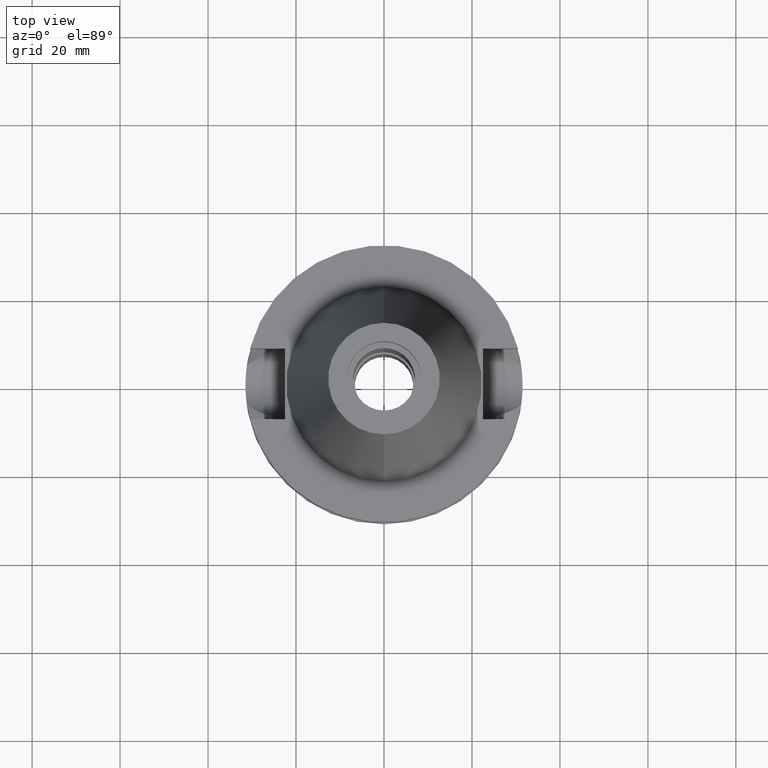
[diagram: clean part render]
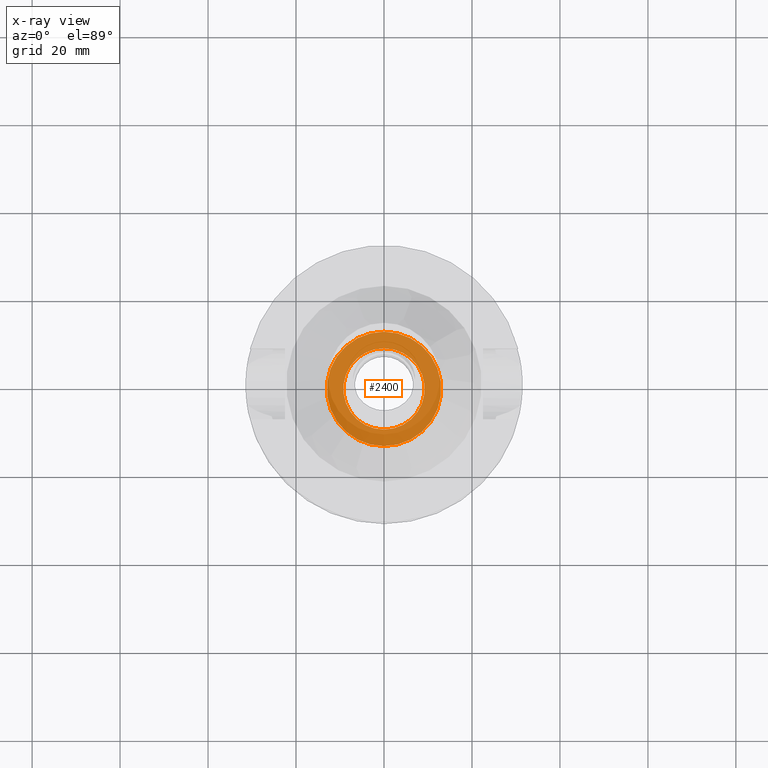
[diagram: x-ray — body ghosted, one internal face saturated and labeled with its STEP entity id]
A machine part, top view, then the same camera in x-ray: the body is ghosted and one INTERNAL B-rep face — a face not visible from any outside direction — is saturated and labeled: STEP entity #2400.
In plain terms, the highlighted planar face has unit normal (0, 0, -1).
Its self-contained STEP definition (entity closure, byte-faithful):
#136 = FACE_BOUND ( 'NONE', #622, .T. ) ;
#173 = CARTESIAN_POINT ( 'NONE',  ( 0.0000000000000000000, 0.0000000000000000000, -11.00000000000000000 ) ) ;
#214 = CARTESIAN_POINT ( 'NONE',  ( 0.0000000000000000000, 13.00000000000000000, -11.00000000000000000 ) ) ;
#254 = CARTESIAN_POINT ( 'NONE',  ( 0.0000000000000000000, 9.250000000000000000, -11.00000000000000000 ) ) ;
#380 = CARTESIAN_POINT ( 'NONE',  ( 0.0000000000000000000, 0.0000000000000000000, -11.00000000000000000 ) ) ;
#558 = DIRECTION ( 'NONE',  ( 0.0000000000000000000, -1.000000000000000000, 0.0000000000000000000 ) ) ;
#622 = EDGE_LOOP ( 'NONE', ( #3190, #2200 ) ) ;
#681 = DIRECTION ( 'NONE',  ( 0.0000000000000000000, 1.000000000000000000, 0.0000000000000000000 ) ) ;
#1113 = DIRECTION ( 'NONE',  ( 0.0000000000000000000, 0.0000000000000000000, 1.000000000000000000 ) ) ;
#1119 = AXIS2_PLACEMENT_3D ( 'NONE', #380, #2835, #2585 ) ;
#1208 = EDGE_LOOP ( 'NONE', ( #1868, #1781 ) ) ;
#1270 = PLANE ( 'NONE',  #1119 ) ;
#1335 = EDGE_CURVE ( 'NONE', #1434, #2907, #2012, .T. ) ;
#1434 = VERTEX_POINT ( 'NONE', #214 ) ;
#1462 = AXIS2_PLACEMENT_3D ( 'NONE', #2646, #3262, #558 ) ;
#1526 = EDGE_CURVE ( 'NONE', #3296, #2073, #3484, .T. ) ;
#1644 = DIRECTION ( 'NONE',  ( 0.0000000000000000000, 0.0000000000000000000, 1.000000000000000000 ) ) ;
#1781 = ORIENTED_EDGE ( 'NONE', *, *, #3384, .F. ) ;
#1868 = ORIENTED_EDGE ( 'NONE', *, *, #1335, .F. ) ;
#1956 = AXIS2_PLACEMENT_3D ( 'NONE', #2095, #1644, #3459 ) ;
#2012 = CIRCLE ( 'NONE', #2729, 13.00000000000000000 ) ;
#2073 = VERTEX_POINT ( 'NONE', #254 ) ;
#2095 = CARTESIAN_POINT ( 'NONE',  ( 0.0000000000000000000, 0.0000000000000000000, -11.00000000000000000 ) ) ;
#2145 = CARTESIAN_POINT ( 'NONE',  ( 0.0000000000000000000, -13.00000000000000000, -11.00000000000000000 ) ) ;
#2166 = CARTESIAN_POINT ( 'NONE',  ( 0.0000000000000000000, 0.0000000000000000000, -11.00000000000000000 ) ) ;
#2200 = ORIENTED_EDGE ( 'NONE', *, *, #1526, .F. ) ;
#2248 = CIRCLE ( 'NONE', #2345, 9.250000000000000000 ) ;
#2325 = CARTESIAN_POINT ( 'NONE',  ( 0.0000000000000000000, -9.250000000000000000, -11.00000000000000000 ) ) ;
#2345 = AXIS2_PLACEMENT_3D ( 'NONE', #2166, #1113, #681 ) ;
#2368 = DIRECTION ( 'NONE',  ( 0.0000000000000000000, 0.0000000000000000000, -1.000000000000000000 ) ) ;
#2400 = ADVANCED_FACE ( 'NONE', ( #2820, #136 ), #1270, .F. ) ;
#2450 = EDGE_CURVE ( 'NONE', #2073, #3296, #2248, .T. ) ;
#2585 = DIRECTION ( 'NONE',  ( 0.0000000000000000000, -1.000000000000000000, 0.0000000000000000000 ) ) ;
#2646 = CARTESIAN_POINT ( 'NONE',  ( 0.0000000000000000000, 0.0000000000000000000, -11.00000000000000000 ) ) ;
#2729 = AXIS2_PLACEMENT_3D ( 'NONE', #173, #2368, #3155 ) ;
#2820 = FACE_OUTER_BOUND ( 'NONE', #1208, .T. ) ;
#2835 = DIRECTION ( 'NONE',  ( 0.0000000000000000000, 0.0000000000000000000, -1.000000000000000000 ) ) ;
#2907 = VERTEX_POINT ( 'NONE', #2145 ) ;
#3155 = DIRECTION ( 'NONE',  ( 0.0000000000000000000, 1.000000000000000000, 0.0000000000000000000 ) ) ;
#3190 = ORIENTED_EDGE ( 'NONE', *, *, #2450, .F. ) ;
#3262 = DIRECTION ( 'NONE',  ( 0.0000000000000000000, 0.0000000000000000000, -1.000000000000000000 ) ) ;
#3292 = CIRCLE ( 'NONE', #1462, 13.00000000000000000 ) ;
#3296 = VERTEX_POINT ( 'NONE', #2325 ) ;
#3384 = EDGE_CURVE ( 'NONE', #2907, #1434, #3292, .T. ) ;
#3459 = DIRECTION ( 'NONE',  ( 0.0000000000000000000, -1.000000000000000000, 0.0000000000000000000 ) ) ;
#3484 = CIRCLE ( 'NONE', #1956, 9.250000000000000000 ) ;